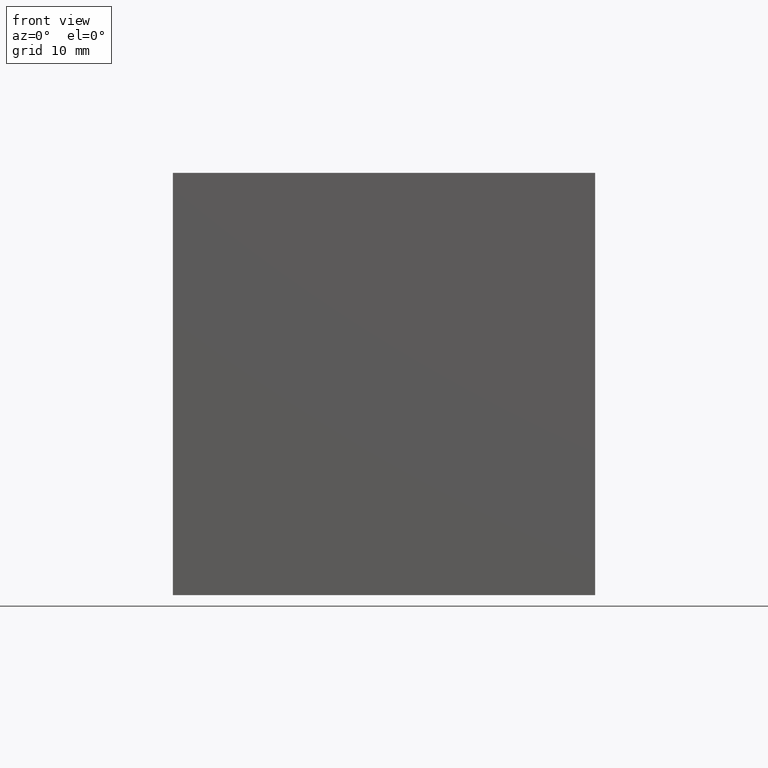
[diagram: clean part render]
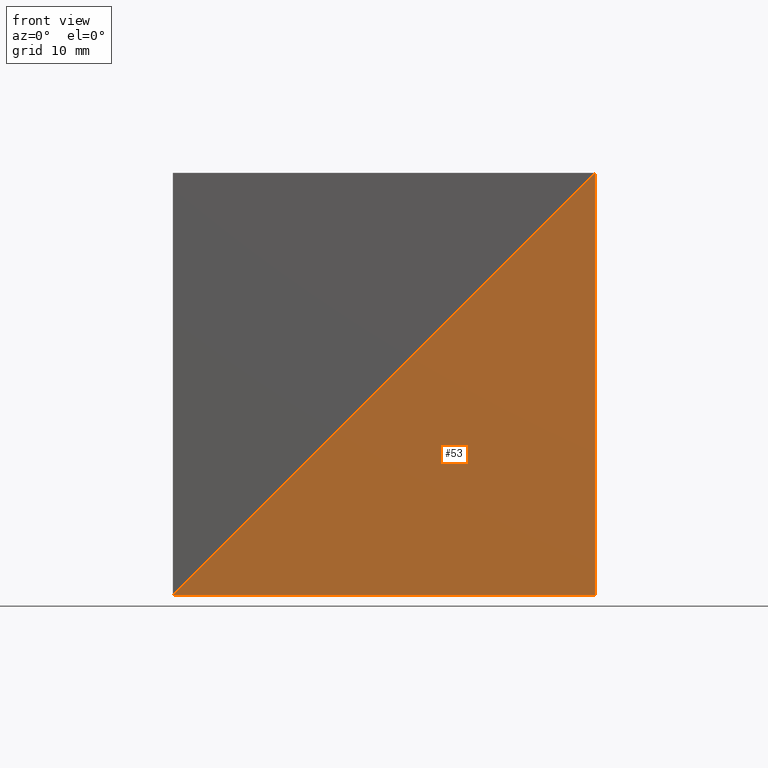
[diagram: same view with one face highlighted and labeled with its STEP entity id]
A machine part, front view. The second image highlights one B-rep face of the part: STEP entity #53.
In plain terms, the highlighted planar face has unit normal (-0, 1, 0).
Its self-contained STEP definition (entity closure, byte-faithful):
#7 = EDGE_CURVE ( 'NONE', #181, #99, #288, .T. ) ;
#16 = DIRECTION ( 'NONE',  ( 0.7071067811865475700, 0.0000000000000000000, 0.7071067811865474600 ) ) ;
#26 = AXIS2_PLACEMENT_3D ( 'NONE', #152, #178, #131 ) ;
#46 = CARTESIAN_POINT ( 'NONE',  ( 0.0000000000000000000, 0.0000000000000000000, -50.00000000000000000 ) ) ;
#53 = ADVANCED_FACE ( 'NONE', ( #74 ), #229, .F. ) ;
#71 = VECTOR ( 'NONE', #216, 1000.000000000000000 ) ;
#72 = EDGE_CURVE ( 'NONE', #139, #181, #261, .T. ) ;
#74 = FACE_OUTER_BOUND ( 'NONE', #220, .T. ) ;
#89 = CARTESIAN_POINT ( 'NONE',  ( 0.0000000000000000000, 0.0000000000000000000, 0.0000000000000000000 ) ) ;
#96 = ORIENTED_EDGE ( 'NONE', *, *, #7, .F. ) ;
#99 = VERTEX_POINT ( 'NONE', #46 ) ;
#123 = DIRECTION ( 'NONE',  ( 0.0000000000000000000, 0.0000000000000000000, -1.000000000000000000 ) ) ;
#131 = DIRECTION ( 'NONE',  ( 0.0000000000000000000, -0.0000000000000000000, 1.000000000000000000 ) ) ;
#139 = VERTEX_POINT ( 'NONE', #188 ) ;
#152 = CARTESIAN_POINT ( 'NONE',  ( 0.0000000000000000000, 0.0000000000000000000, 0.0000000000000000000 ) ) ;
#165 = VECTOR ( 'NONE', #16, 1000.000000000000000 ) ;
#178 = DIRECTION ( 'NONE',  ( -0.0000000000000000000, 1.000000000000000000, 0.0000000000000000000 ) ) ;
#181 = VERTEX_POINT ( 'NONE', #89 ) ;
#188 = CARTESIAN_POINT ( 'NONE',  ( -50.00000000000000000, 0.0000000000000000000, -49.99999999999999300 ) ) ;
#194 = CARTESIAN_POINT ( 'NONE',  ( -50.00000000000000000, 0.0000000000000000000, -49.99999999999999300 ) ) ;
#200 = ORIENTED_EDGE ( 'NONE', *, *, #72, .F. ) ;
#201 = EDGE_CURVE ( 'NONE', #99, #139, #206, .T. ) ;
#204 = CARTESIAN_POINT ( 'NONE',  ( 0.0000000000000000000, 0.0000000000000000000, -50.00000000000000000 ) ) ;
#206 = LINE ( 'NONE', #204, #71 ) ;
#216 = DIRECTION ( 'NONE',  ( -1.000000000000000000, 0.0000000000000000000, 1.387778780781445700E-016 ) ) ;
#220 = EDGE_LOOP ( 'NONE', ( #200, #297, #96 ) ) ;
#224 = VECTOR ( 'NONE', #123, 1000.000000000000000 ) ;
#229 = PLANE ( 'NONE',  #26 ) ;
#261 = LINE ( 'NONE', #194, #165 ) ;
#273 = CARTESIAN_POINT ( 'NONE',  ( 0.0000000000000000000, 0.0000000000000000000, 0.0000000000000000000 ) ) ;
#288 = LINE ( 'NONE', #273, #224 ) ;
#297 = ORIENTED_EDGE ( 'NONE', *, *, #201, .F. ) ;